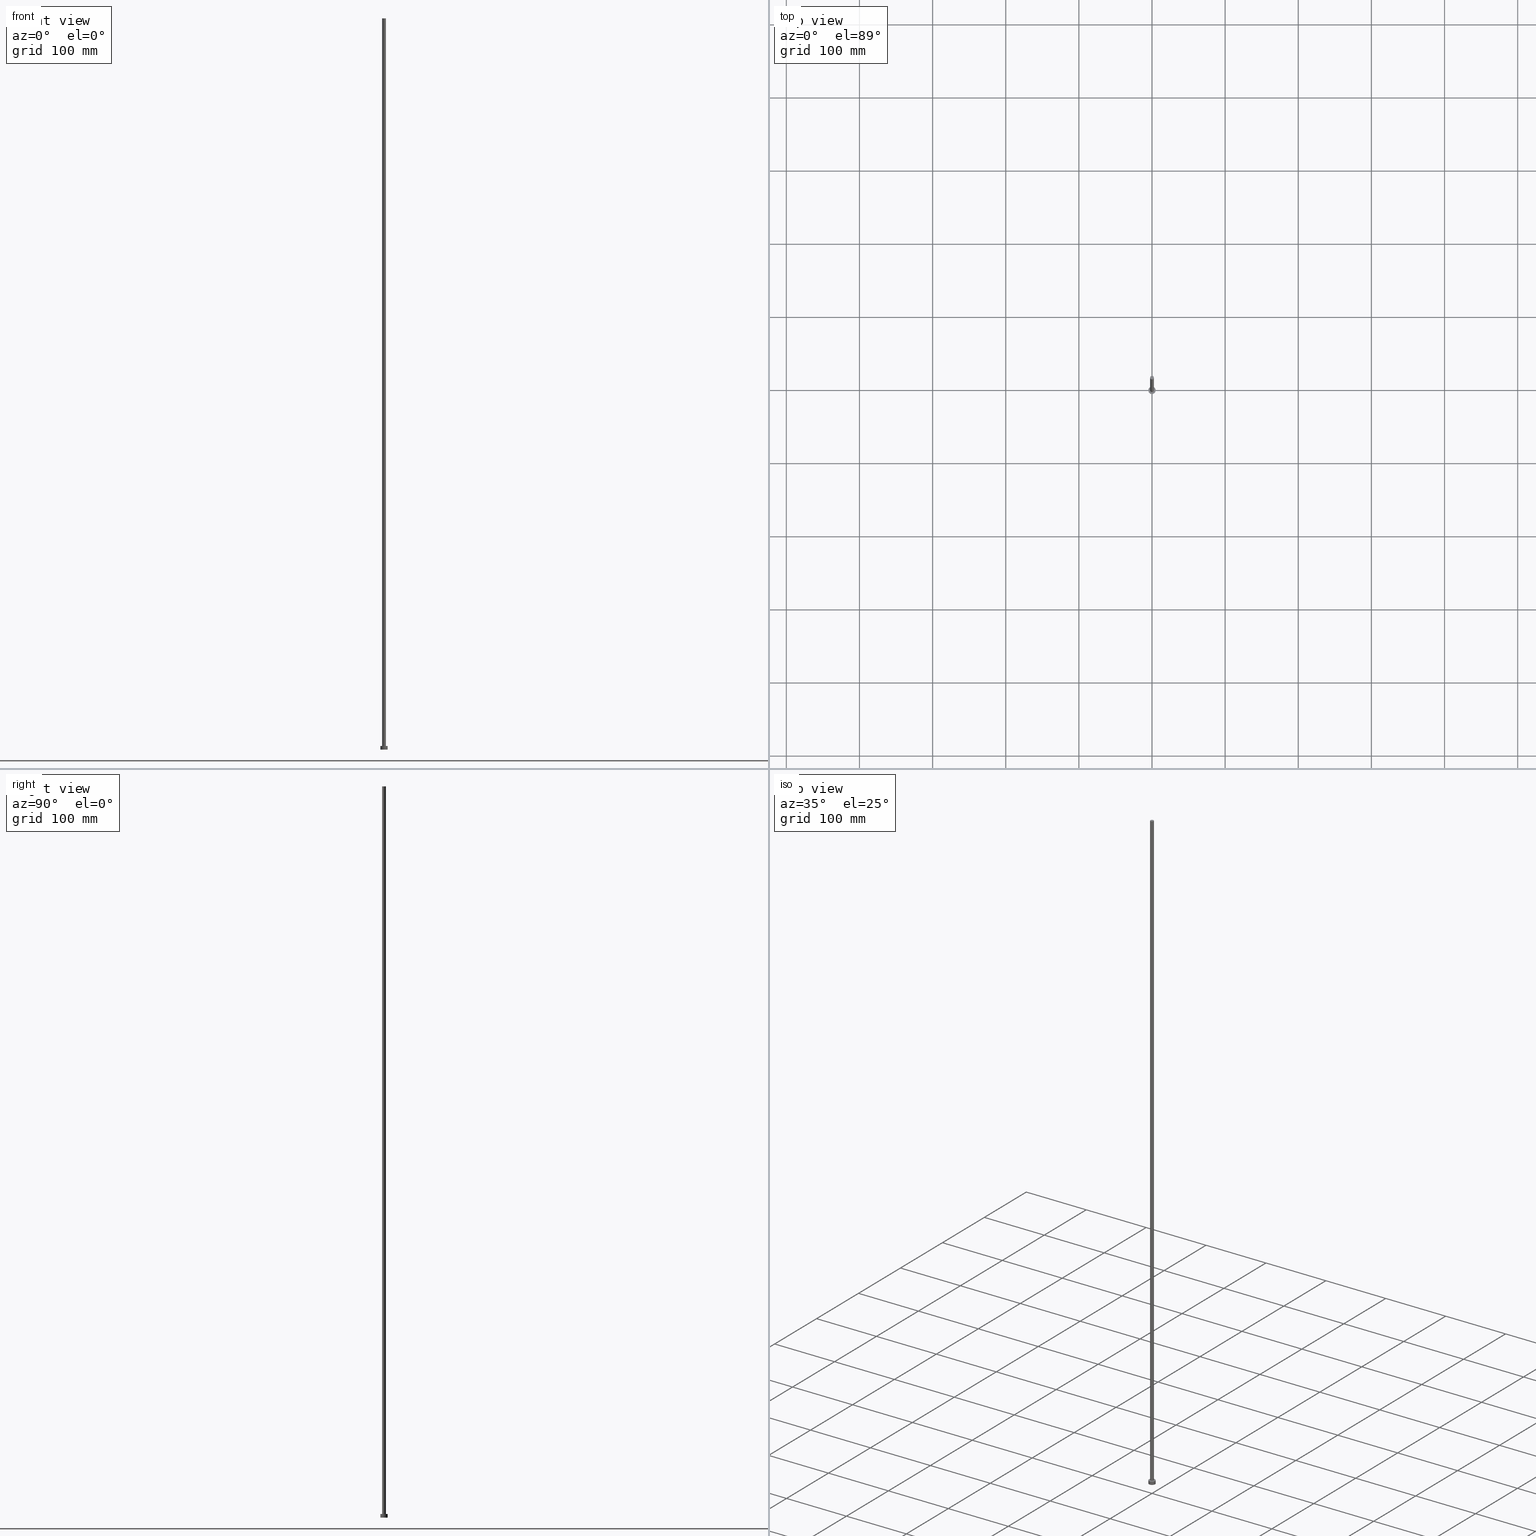
[diagram: canonical four-view strip — front | top / right | iso, engineering-drawing reading convention]
A machine part, canonical four-view strip (front | top / right | iso — engineering-drawing reading convention). The complete STEP part file that produces these views, byte-faithful:
ISO-10303-21;
HEADER;
FILE_DESCRIPTION (( 'STEP AP203' ),
    '1' );
FILE_NAME ('77b4.STEP',
    '2023-02-13T16:05:03',
    ( '' ),
    ( '' ),
    'SwSTEP 2.0',
    'SolidWorks 2019',
    '' );
FILE_SCHEMA (( 'CONFIG_CONTROL_DESIGN' ));
ENDSEC;

DATA;
#1 = FACE_OUTER_BOUND ( 'NONE', #240, .T. ) ;
#2 = CARTESIAN_POINT ( 'NONE',  ( 0.000000000000000000, 0.000000000000000000, 1000.000000000000000 ) ) ;
#3 = CARTESIAN_POINT ( 'NONE',  ( -5.000000000000000000, 0.000000000000000000, 0.000000000000000000 ) ) ;
#4 = FACE_OUTER_BOUND ( 'NONE', #194, .T. ) ;
#5 = ORIENTED_EDGE ( 'NONE', *, *, #107, .F. ) ;
#6 = APPROVAL_STATUS ( 'not_yet_approved' ) ;
#7 = CIRCLE ( 'NONE', #211, 5.000000000000000000 ) ;
#8 = DIRECTION ( 'NONE',  ( 0.000000000000000000, 0.000000000000000000, 1.000000000000000000 ) ) ;
#9 = ORGANIZATION ( 'NEUR�EN�', 'NEUR�EN�', '' ) ;
#10 = ORIENTED_EDGE ( 'NONE', *, *, #239, .T. ) ;
#11 = PERSON_AND_ORGANIZATION ( #163, #9 ) ;
#12 = EDGE_CURVE ( 'NONE', #252, #21, #7, .T. ) ;
#13 = CIRCLE ( 'NONE', #46, 5.000000000000000000 ) ;
#14 = ORIENTED_EDGE ( 'NONE', *, *, #47, .T. ) ;
#15 = CALENDAR_DATE ( 2023, 13, 2 ) ;
#16 = FACE_OUTER_BOUND ( 'NONE', #254, .T. ) ;
#17 = ORIENTED_EDGE ( 'NONE', *, *, #221, .F. ) ;
#18 = CARTESIAN_POINT ( 'NONE',  ( 0.000000000000000000, 0.000000000000000000, 5.000000000000000000 ) ) ;
#19 = ORIENTED_EDGE ( 'NONE', *, *, #42, .F. ) ;
#20 = ADVANCED_FACE ( 'NONE', ( #153 ), #64, .T. ) ;
#21 = VERTEX_POINT ( 'NONE', #123 ) ;
#22 = DIRECTION ( 'NONE',  ( -0.000000000000000000, -0.000000000000000000, -1.000000000000000000 ) ) ;
#23 = CIRCLE ( 'NONE', #120, 2.500000000000000000 ) ;
#24 = AXIS2_PLACEMENT_3D ( 'NONE', #207, #114, #99 ) ;
#25 = FACE_OUTER_BOUND ( 'NONE', #92, .T. ) ;
#26 = CARTESIAN_POINT ( 'NONE',  ( 0.000000000000000000, 0.000000000000000000, 1000.000000000000000 ) ) ;
#27 = DIRECTION ( 'NONE',  ( 1.000000000000000000, 0.000000000000000000, 0.000000000000000000 ) ) ;
#28 = AXIS2_PLACEMENT_3D ( 'NONE', #156, #50, #178 ) ;
#29 = CARTESIAN_POINT ( 'NONE',  ( 0.000000000000000000, 0.000000000000000000, 5.000000000000000000 ) ) ;
#30 = CARTESIAN_POINT ( 'NONE',  ( -5.000000000000000000, 0.000000000000000000, 5.000000000000000000 ) ) ;
#31 = CARTESIAN_POINT ( 'NONE',  ( 5.000000000000000000, 6.123233995736766282E-16, 5.000000000000000000 ) ) ;
#32 = CALENDAR_DATE ( 2023, 13, 2 ) ;
#33 = CARTESIAN_POINT ( 'NONE',  ( 0.000000000000000000, 0.000000000000000000, 0.000000000000000000 ) ) ;
#34 = VERTEX_POINT ( 'NONE', #195 ) ;
#35 = APPROVAL_STATUS ( 'not_yet_approved' ) ;
#36 = COORDINATED_UNIVERSAL_TIME_OFFSET ( 1, 0, .AHEAD. ) ;
#37 = CARTESIAN_POINT ( 'NONE',  ( 0.000000000000000000, 0.000000000000000000, 0.000000000000000000 ) ) ;
#38 = ORIENTED_EDGE ( 'NONE', *, *, #107, .T. ) ;
#39 = ORIENTED_EDGE ( 'NONE', *, *, #193, .F. ) ;
#40 = AXIS2_PLACEMENT_3D ( 'NONE', #141, #219, #81 ) ;
#41 = DIRECTION ( 'NONE',  ( -1.000000000000000000, 0.000000000000000000, 0.000000000000000000 ) ) ;
#42 = EDGE_CURVE ( 'NONE', #145, #252, #181, .T. ) ;
#43 = CC_DESIGN_SECURITY_CLASSIFICATION ( #59, ( #176 ) ) ;
#44 =( NAMED_UNIT ( * ) PLANE_ANGLE_UNIT ( ) SI_UNIT ( $, .RADIAN. ) );
#45 = DIRECTION ( 'NONE',  ( 0.000000000000000000, 0.000000000000000000, 1.000000000000000000 ) ) ;
#46 = AXIS2_PLACEMENT_3D ( 'NONE', #116, #183, #205 ) ;
#47 = EDGE_CURVE ( 'NONE', #118, #69, #180, .T. ) ;
#48 = APPLICATION_PROTOCOL_DEFINITION ( 'international standard', 'config_control_design', 1994, #95 ) ;
#49 = DIRECTION ( 'NONE',  ( 0.000000000000000000, 0.000000000000000000, 1.000000000000000000 ) ) ;
#50 = DIRECTION ( 'NONE',  ( -0.000000000000000000, -0.000000000000000000, -1.000000000000000000 ) ) ;
#51 = ORIENTED_EDGE ( 'NONE', *, *, #119, .F. ) ;
#52 = DIRECTION ( 'NONE',  ( 1.000000000000000000, 0.000000000000000000, 0.000000000000000000 ) ) ;
#53 = PLANE ( 'NONE',  #129 ) ;
#54 = VERTEX_POINT ( 'NONE', #158 ) ;
#55 = ADVANCED_FACE ( 'NONE', ( #200 ), #196, .T. ) ;
#56 = APPROVAL_ROLE ( '' ) ;
#57 = DIRECTION ( 'NONE',  ( 1.000000000000000000, 0.000000000000000000, -0.000000000000000000 ) ) ;
#58 = VECTOR ( 'NONE', #84, 1000.000000000000000 ) ;
#59 = SECURITY_CLASSIFICATION ( '', '', #151 ) ;
#60 = CC_DESIGN_DATE_AND_TIME_ASSIGNMENT ( #172, #72, ( #214 ) ) ;
#61 = LINE ( 'NONE', #177, #233 ) ;
#62 = ORIENTED_EDGE ( 'NONE', *, *, #221, .T. ) ;
#63 = APPROVAL_PERSON_ORGANIZATION ( #90, #175, #226 ) ;
#64 = CYLINDRICAL_SURFACE ( 'NONE', #100, 2.500000000000000000 ) ;
#65 = CARTESIAN_POINT ( 'NONE',  ( 0.000000000000000000, 0.000000000000000000, 5.000000000000000000 ) ) ;
#66 = EDGE_LOOP ( 'NONE', ( #39, #5 ) ) ;
#67 = CARTESIAN_POINT ( 'NONE',  ( 0.000000000000000000, 0.000000000000000000, 0.000000000000000000 ) ) ;
#68 = APPROVAL_DATE_TIME ( #224, #76 ) ;
#69 = VERTEX_POINT ( 'NONE', #137 ) ;
#70 = SHAPE_DEFINITION_REPRESENTATION ( #126, #146 ) ;
#71 = AXIS2_PLACEMENT_3D ( 'NONE', #185, #8, #74 ) ;
#72 = DATE_TIME_ROLE ( 'creation_date' ) ;
#73 = APPROVAL_DATE_TIME ( #85, #159 ) ;
#74 = DIRECTION ( 'NONE',  ( 1.000000000000000000, 0.000000000000000000, 0.000000000000000000 ) ) ;
#75 = ORIENTED_EDGE ( 'NONE', *, *, #170, .F. ) ;
#76 = APPROVAL ( #35, 'NEUR�EN�' ) ;
#77 = CC_DESIGN_APPROVAL ( #159, ( #59 ) ) ;
#78 = CYLINDRICAL_SURFACE ( 'NONE', #28, 5.000000000000000000 ) ;
#79 = AXIS2_PLACEMENT_3D ( 'NONE', #2, #83, #142 ) ;
#80 = CC_DESIGN_PERSON_AND_ORGANIZATION_ASSIGNMENT ( #11, #113, ( #202 ) ) ;
#81 = DIRECTION ( 'NONE',  ( -1.000000000000000000, 0.000000000000000000, 0.000000000000000000 ) ) ;
#82 = DIRECTION ( 'NONE',  ( 0.000000000000000000, 0.000000000000000000, 1.000000000000000000 ) ) ;
#83 = DIRECTION ( 'NONE',  ( 0.000000000000000000, 0.000000000000000000, 1.000000000000000000 ) ) ;
#84 = DIRECTION ( 'NONE',  ( -0.000000000000000000, -0.000000000000000000, -1.000000000000000000 ) ) ;
#85 = DATE_AND_TIME ( #32, #125 ) ;
#86 = AXIS2_PLACEMENT_3D ( 'NONE', #29, #127, #27 ) ;
#87 = CARTESIAN_POINT ( 'NONE',  ( -2.500000000000000000, 0.000000000000000000, 1000.000000000000000 ) ) ;
#88 = COORDINATED_UNIVERSAL_TIME_OFFSET ( 1, 0, .AHEAD. ) ;
#89 = EDGE_LOOP ( 'NONE', ( #237, #62, #38, #147 ) ) ;
#90 = PERSON_AND_ORGANIZATION ( #163, #9 ) ;
#91 = FACE_BOUND ( 'NONE', #66, .T. ) ;
#92 = EDGE_LOOP ( 'NONE', ( #51, #139, #215, #19 ) ) ;
#93 = CARTESIAN_POINT ( 'NONE',  ( 0.000000000000000000, 0.000000000000000000, 1000.000000000000000 ) ) ;
#94 = PRODUCT_RELATED_PRODUCT_CATEGORY ( 'detail', '', ( #202 ) ) ;
#95 = APPLICATION_CONTEXT ( 'configuration controlled 3d designs of mechanical parts and assemblies' ) ;
#96 = VECTOR ( 'NONE', #168, 1000.000000000000000 ) ;
#97 = ORIENTED_EDGE ( 'NONE', *, *, #193, .T. ) ;
#98 =( GEOMETRIC_REPRESENTATION_CONTEXT ( 3 ) GLOBAL_UNCERTAINTY_ASSIGNED_CONTEXT ( ( #155 ) ) GLOBAL_UNIT_ASSIGNED_CONTEXT ( ( #161, #44, #235 ) ) REPRESENTATION_CONTEXT ( 'NONE', 'WORKASPACE' ) );
#99 = DIRECTION ( 'NONE',  ( -1.000000000000000000, 0.000000000000000000, 0.000000000000000000 ) ) ;
#100 = AXIS2_PLACEMENT_3D ( 'NONE', #26, #104, #41 ) ;
#101 = CIRCLE ( 'NONE', #71, 2.500000000000000000 ) ;
#102 = CARTESIAN_POINT ( 'NONE',  ( 0.000000000000000000, 0.000000000000000000, 1000.000000000000000 ) ) ;
#103 = ADVANCED_FACE ( 'NONE', ( #16 ), #53, .F. ) ;
#104 = DIRECTION ( 'NONE',  ( -0.000000000000000000, -0.000000000000000000, -1.000000000000000000 ) ) ;
#105 = CIRCLE ( 'NONE', #164, 5.000000000000000000 ) ;
#106 = PERSON_AND_ORGANIZATION ( #163, #9 ) ;
#107 = EDGE_CURVE ( 'NONE', #54, #34, #23, .T. ) ;
#108 = PERSON_AND_ORGANIZATION_ROLE ( 'creator' ) ;
#109 = LOCAL_TIME ( 17, 5, 3.000000000000000000, #184 ) ;
#110 = PERSON_AND_ORGANIZATION ( #163, #9 ) ;
#111 = DATE_AND_TIME ( #15, #109 ) ;
#112 = ORIENTED_EDGE ( 'NONE', *, *, #12, .F. ) ;
#113 = PERSON_AND_ORGANIZATION_ROLE ( 'design_owner' ) ;
#114 = DIRECTION ( 'NONE',  ( -0.000000000000000000, -0.000000000000000000, -1.000000000000000000 ) ) ;
#115 = DIRECTION ( 'NONE',  ( 1.000000000000000000, 0.000000000000000000, 0.000000000000000000 ) ) ;
#116 = CARTESIAN_POINT ( 'NONE',  ( 0.000000000000000000, 0.000000000000000000, 0.000000000000000000 ) ) ;
#117 = EDGE_CURVE ( 'NONE', #69, #118, #216, .T. ) ;
#118 = VERTEX_POINT ( 'NONE', #133 ) ;
#119 = EDGE_CURVE ( 'NONE', #191, #145, #105, .T. ) ;
#120 = AXIS2_PLACEMENT_3D ( 'NONE', #65, #128, #162 ) ;
#121 = ORIENTED_EDGE ( 'NONE', *, *, #144, .F. ) ;
#122 = CC_DESIGN_APPROVAL ( #175, ( #176 ) ) ;
#123 = CARTESIAN_POINT ( 'NONE',  ( 5.000000000000000000, 6.123233995736766282E-16, 0.000000000000000000 ) ) ;
#124 = CLOSED_SHELL ( 'NONE', ( #20, #229, #255, #190, #103, #217, #55 ) ) ;
#125 = LOCAL_TIME ( 17, 5, 3.000000000000000000, #187 ) ;
#126 = PRODUCT_DEFINITION_SHAPE ( 'NONE', 'NONE',  #214 ) ;
#127 = DIRECTION ( 'NONE',  ( 0.000000000000000000, 0.000000000000000000, 1.000000000000000000 ) ) ;
#128 = DIRECTION ( 'NONE',  ( 0.000000000000000000, 0.000000000000000000, 1.000000000000000000 ) ) ;
#129 = AXIS2_PLACEMENT_3D ( 'NONE', #33, #49, #57 ) ;
#130 = LINE ( 'NONE', #203, #58 ) ;
#131 = DIRECTION ( 'NONE',  ( 1.000000000000000000, 0.000000000000000000, -0.000000000000000000 ) ) ;
#132 = PERSON_AND_ORGANIZATION_ROLE ( 'classification_officer' ) ;
#133 = CARTESIAN_POINT ( 'NONE',  ( -2.500000000000000000, 0.000000000000000000, 1000.000000000000000 ) ) ;
#134 = CC_DESIGN_PERSON_AND_ORGANIZATION_ASSIGNMENT ( #106, #108, ( #176 ) ) ;
#135 = ORIENTED_EDGE ( 'NONE', *, *, #47, .F. ) ;
#136 = CALENDAR_DATE ( 2023, 13, 2 ) ;
#137 = CARTESIAN_POINT ( 'NONE',  ( 2.500000000000000000, 3.061616997868382648E-16, 1000.000000000000000 ) ) ;
#138 = ORIENTED_EDGE ( 'NONE', *, *, #201, .T. ) ;
#139 = ORIENTED_EDGE ( 'NONE', *, *, #144, .T. ) ;
#140 = CC_DESIGN_PERSON_AND_ORGANIZATION_ASSIGNMENT ( #244, #132, ( #59 ) ) ;
#141 = CARTESIAN_POINT ( 'NONE',  ( 0.000000000000000000, 0.000000000000000000, 5.000000000000000000 ) ) ;
#142 = DIRECTION ( 'NONE',  ( 1.000000000000000000, 0.000000000000000000, 0.000000000000000000 ) ) ;
#143 = DIRECTION ( 'NONE',  ( 1.000000000000000000, 0.000000000000000000, -0.000000000000000000 ) ) ;
#144 = EDGE_CURVE ( 'NONE', #191, #21, #130, .T. ) ;
#145 = VERTEX_POINT ( 'NONE', #30 ) ;
#146 = ADVANCED_BREP_SHAPE_REPRESENTATION ( '77b4', ( #204, #150 ), #98 ) ;
#147 = ORIENTED_EDGE ( 'NONE', *, *, #201, .F. ) ;
#148 = COORDINATED_UNIVERSAL_TIME_OFFSET ( 1, 0, .AHEAD. ) ;
#149 = APPROVAL_DATE_TIME ( #111, #175 ) ;
#150 = AXIS2_PLACEMENT_3D ( 'NONE', #67, #171, #52 ) ;
#151 = SECURITY_CLASSIFICATION_LEVEL ( 'unclassified' ) ;
#152 = LINE ( 'NONE', #87, #96 ) ;
#153 = FACE_OUTER_BOUND ( 'NONE', #89, .T. ) ;
#154 = APPROVAL_PERSON_ORGANIZATION ( #246, #76, #56 ) ;
#155 = UNCERTAINTY_MEASURE_WITH_UNIT (LENGTH_MEASURE( 1.000000000000000082E-05 ), #161, 'distance_accuracy_value', 'NONE');
#156 = CARTESIAN_POINT ( 'NONE',  ( 0.000000000000000000, 0.000000000000000000, 5.000000000000000000 ) ) ;
#157 = AXIS2_PLACEMENT_3D ( 'NONE', #102, #82, #160 ) ;
#158 = CARTESIAN_POINT ( 'NONE',  ( 2.500000000000000000, 3.061616997868382648E-16, 5.000000000000000000 ) ) ;
#159 = APPROVAL ( #6, 'NEUR�EN�' ) ;
#160 = DIRECTION ( 'NONE',  ( 1.000000000000000000, 0.000000000000000000, 0.000000000000000000 ) ) ;
#161 =( LENGTH_UNIT ( ) NAMED_UNIT ( * ) SI_UNIT ( .MILLI., .METRE. ) );
#162 = DIRECTION ( 'NONE',  ( 1.000000000000000000, 0.000000000000000000, 0.000000000000000000 ) ) ;
#163 = PERSON ( 'NEUR�EN�', 'NEUR�EN�', 'NEUR�EN�', ('NEUR�EN�'), ('NEUR�EN�'), ('NEUR�EN�') ) ;
#164 = AXIS2_PLACEMENT_3D ( 'NONE', #251, #236, #222 ) ;
#165 = PLANE ( 'NONE',  #197 ) ;
#166 = CIRCLE ( 'NONE', #86, 5.000000000000000000 ) ;
#167 = CC_DESIGN_APPROVAL ( #76, ( #214 ) ) ;
#168 = DIRECTION ( 'NONE',  ( -0.000000000000000000, -0.000000000000000000, -1.000000000000000000 ) ) ;
#169 = APPROVAL_STATUS ( 'not_yet_approved' ) ;
#170 = EDGE_CURVE ( 'NONE', #21, #252, #13, .T. ) ;
#171 = DIRECTION ( 'NONE',  ( 0.000000000000000000, 0.000000000000000000, 1.000000000000000000 ) ) ;
#172 = DATE_AND_TIME ( #189, #220 ) ;
#173 = DESIGN_CONTEXT ( 'detailed design', #182, 'design' ) ;
#174 = PERSON_AND_ORGANIZATION_ROLE ( 'design_supplier' ) ;
#175 = APPROVAL ( #169, 'NEUR�EN�' ) ;
#176 = PRODUCT_DEFINITION_FORMATION_WITH_SPECIFIED_SOURCE ( 'LIBOVOLN�', '', #202, .NOT_KNOWN. ) ;
#177 = CARTESIAN_POINT ( 'NONE',  ( 2.500000000000000000, 3.061616997868382648E-16, 1000.000000000000000 ) ) ;
#178 = DIRECTION ( 'NONE',  ( -1.000000000000000000, 0.000000000000000000, 0.000000000000000000 ) ) ;
#179 = CC_DESIGN_PERSON_AND_ORGANIZATION_ASSIGNMENT ( #248, #212, ( #214 ) ) ;
#180 = CIRCLE ( 'NONE', #157, 2.500000000000000000 ) ;
#181 = LINE ( 'NONE', #218, #230 ) ;
#182 = APPLICATION_CONTEXT ( 'configuration controlled 3d designs of mechanical parts and assemblies' ) ;
#183 = DIRECTION ( 'NONE',  ( 0.000000000000000000, 0.000000000000000000, 1.000000000000000000 ) ) ;
#184 = COORDINATED_UNIVERSAL_TIME_OFFSET ( 1, 0, .AHEAD. ) ;
#185 = CARTESIAN_POINT ( 'NONE',  ( 0.000000000000000000, 0.000000000000000000, 5.000000000000000000 ) ) ;
#186 = CALENDAR_DATE ( 2023, 13, 2 ) ;
#187 = COORDINATED_UNIVERSAL_TIME_OFFSET ( 1, 0, .AHEAD. ) ;
#188 = DIRECTION ( 'NONE',  ( 0.000000000000000000, 0.000000000000000000, 1.000000000000000000 ) ) ;
#189 = CALENDAR_DATE ( 2023, 13, 2 ) ;
#190 = ADVANCED_FACE ( 'NONE', ( #91, #4 ), #165, .T. ) ;
#191 = VERTEX_POINT ( 'NONE', #31 ) ;
#192 = ORIENTED_EDGE ( 'NONE', *, *, #42, .T. ) ;
#193 = EDGE_CURVE ( 'NONE', #34, #54, #101, .T. ) ;
#194 = EDGE_LOOP ( 'NONE', ( #10, #249 ) ) ;
#195 = CARTESIAN_POINT ( 'NONE',  ( -2.500000000000000000, 0.000000000000000000, 5.000000000000000000 ) ) ;
#196 = PLANE ( 'NONE',  #232 ) ;
#197 = AXIS2_PLACEMENT_3D ( 'NONE', #18, #238, #131 ) ;
#198 = DIRECTION ( 'NONE',  ( -0.000000000000000000, -0.000000000000000000, -1.000000000000000000 ) ) ;
#199 = LOCAL_TIME ( 17, 5, 3.000000000000000000, #148 ) ;
#200 = FACE_OUTER_BOUND ( 'NONE', #227, .T. ) ;
#201 = EDGE_CURVE ( 'NONE', #118, #34, #152, .T. ) ;
#202 = PRODUCT ( '77b4', '77b4', '', ( #209 ) ) ;
#203 = CARTESIAN_POINT ( 'NONE',  ( 5.000000000000000000, 6.123233995736766282E-16, 5.000000000000000000 ) ) ;
#204 = MANIFOLD_SOLID_BREP ( 'P�idat vysunut�m3', #124 ) ;
#205 = DIRECTION ( 'NONE',  ( 1.000000000000000000, 0.000000000000000000, 0.000000000000000000 ) ) ;
#206 = DATE_TIME_ROLE ( 'classification_date' ) ;
#207 = CARTESIAN_POINT ( 'NONE',  ( 0.000000000000000000, 0.000000000000000000, 1000.000000000000000 ) ) ;
#208 = APPROVAL_ROLE ( '' ) ;
#209 = MECHANICAL_CONTEXT ( 'NONE', #95, 'mechanical' ) ;
#210 = APPLICATION_PROTOCOL_DEFINITION ( 'international standard', 'config_control_design', 1994, #182 ) ;
#211 = AXIS2_PLACEMENT_3D ( 'NONE', #37, #188, #115 ) ;
#212 = PERSON_AND_ORGANIZATION_ROLE ( 'creator' ) ;
#213 = CYLINDRICAL_SURFACE ( 'NONE', #24, 2.500000000000000000 ) ;
#214 = PRODUCT_DEFINITION ( 'NEZN�M�', '', #176, #173 ) ;
#215 = ORIENTED_EDGE ( 'NONE', *, *, #170, .T. ) ;
#216 = CIRCLE ( 'NONE', #79, 2.500000000000000000 ) ;
#217 = ADVANCED_FACE ( 'NONE', ( #242 ), #213, .T. ) ;
#218 = CARTESIAN_POINT ( 'NONE',  ( -5.000000000000000000, 0.000000000000000000, 5.000000000000000000 ) ) ;
#219 = DIRECTION ( 'NONE',  ( -0.000000000000000000, -0.000000000000000000, -1.000000000000000000 ) ) ;
#220 = LOCAL_TIME ( 17, 5, 3.000000000000000000, #36 ) ;
#221 = EDGE_CURVE ( 'NONE', #69, #54, #61, .T. ) ;
#222 = DIRECTION ( 'NONE',  ( 1.000000000000000000, 0.000000000000000000, 0.000000000000000000 ) ) ;
#223 = EDGE_LOOP ( 'NONE', ( #17, #135, #138, #97 ) ) ;
#224 = DATE_AND_TIME ( #136, #228 ) ;
#225 = ORIENTED_EDGE ( 'NONE', *, *, #239, .F. ) ;
#226 = APPROVAL_ROLE ( '' ) ;
#227 = EDGE_LOOP ( 'NONE', ( #14, #243 ) ) ;
#228 = LOCAL_TIME ( 17, 5, 3.000000000000000000, #88 ) ;
#229 = ADVANCED_FACE ( 'NONE', ( #25 ), #78, .T. ) ;
#230 = VECTOR ( 'NONE', #22, 1000.000000000000000 ) ;
#231 = CYLINDRICAL_SURFACE ( 'NONE', #40, 5.000000000000000000 ) ;
#232 = AXIS2_PLACEMENT_3D ( 'NONE', #93, #45, #143 ) ;
#233 = VECTOR ( 'NONE', #198, 1000.000000000000000 ) ;
#234 = APPROVAL_PERSON_ORGANIZATION ( #241, #159, #208 ) ;
#235 =( NAMED_UNIT ( * ) SI_UNIT ( $, .STERADIAN. ) SOLID_ANGLE_UNIT ( ) );
#236 = DIRECTION ( 'NONE',  ( 0.000000000000000000, 0.000000000000000000, 1.000000000000000000 ) ) ;
#237 = ORIENTED_EDGE ( 'NONE', *, *, #117, .F. ) ;
#238 = DIRECTION ( 'NONE',  ( 0.000000000000000000, 0.000000000000000000, 1.000000000000000000 ) ) ;
#239 = EDGE_CURVE ( 'NONE', #145, #191, #166, .T. ) ;
#240 = EDGE_LOOP ( 'NONE', ( #121, #225, #192, #247 ) ) ;
#241 = PERSON_AND_ORGANIZATION ( #163, #9 ) ;
#242 = FACE_OUTER_BOUND ( 'NONE', #223, .T. ) ;
#243 = ORIENTED_EDGE ( 'NONE', *, *, #117, .T. ) ;
#244 = PERSON_AND_ORGANIZATION ( #163, #9 ) ;
#245 = CC_DESIGN_PERSON_AND_ORGANIZATION_ASSIGNMENT ( #110, #174, ( #176 ) ) ;
#246 = PERSON_AND_ORGANIZATION ( #163, #9 ) ;
#247 = ORIENTED_EDGE ( 'NONE', *, *, #12, .T. ) ;
#248 = PERSON_AND_ORGANIZATION ( #163, #9 ) ;
#249 = ORIENTED_EDGE ( 'NONE', *, *, #119, .T. ) ;
#250 = DATE_AND_TIME ( #186, #199 ) ;
#251 = CARTESIAN_POINT ( 'NONE',  ( 0.000000000000000000, 0.000000000000000000, 5.000000000000000000 ) ) ;
#252 = VERTEX_POINT ( 'NONE', #3 ) ;
#253 = CC_DESIGN_DATE_AND_TIME_ASSIGNMENT ( #250, #206, ( #59 ) ) ;
#254 = EDGE_LOOP ( 'NONE', ( #112, #75 ) ) ;
#255 = ADVANCED_FACE ( 'NONE', ( #1 ), #231, .T. ) ;
ENDSEC;
END-ISO-10303-21;
